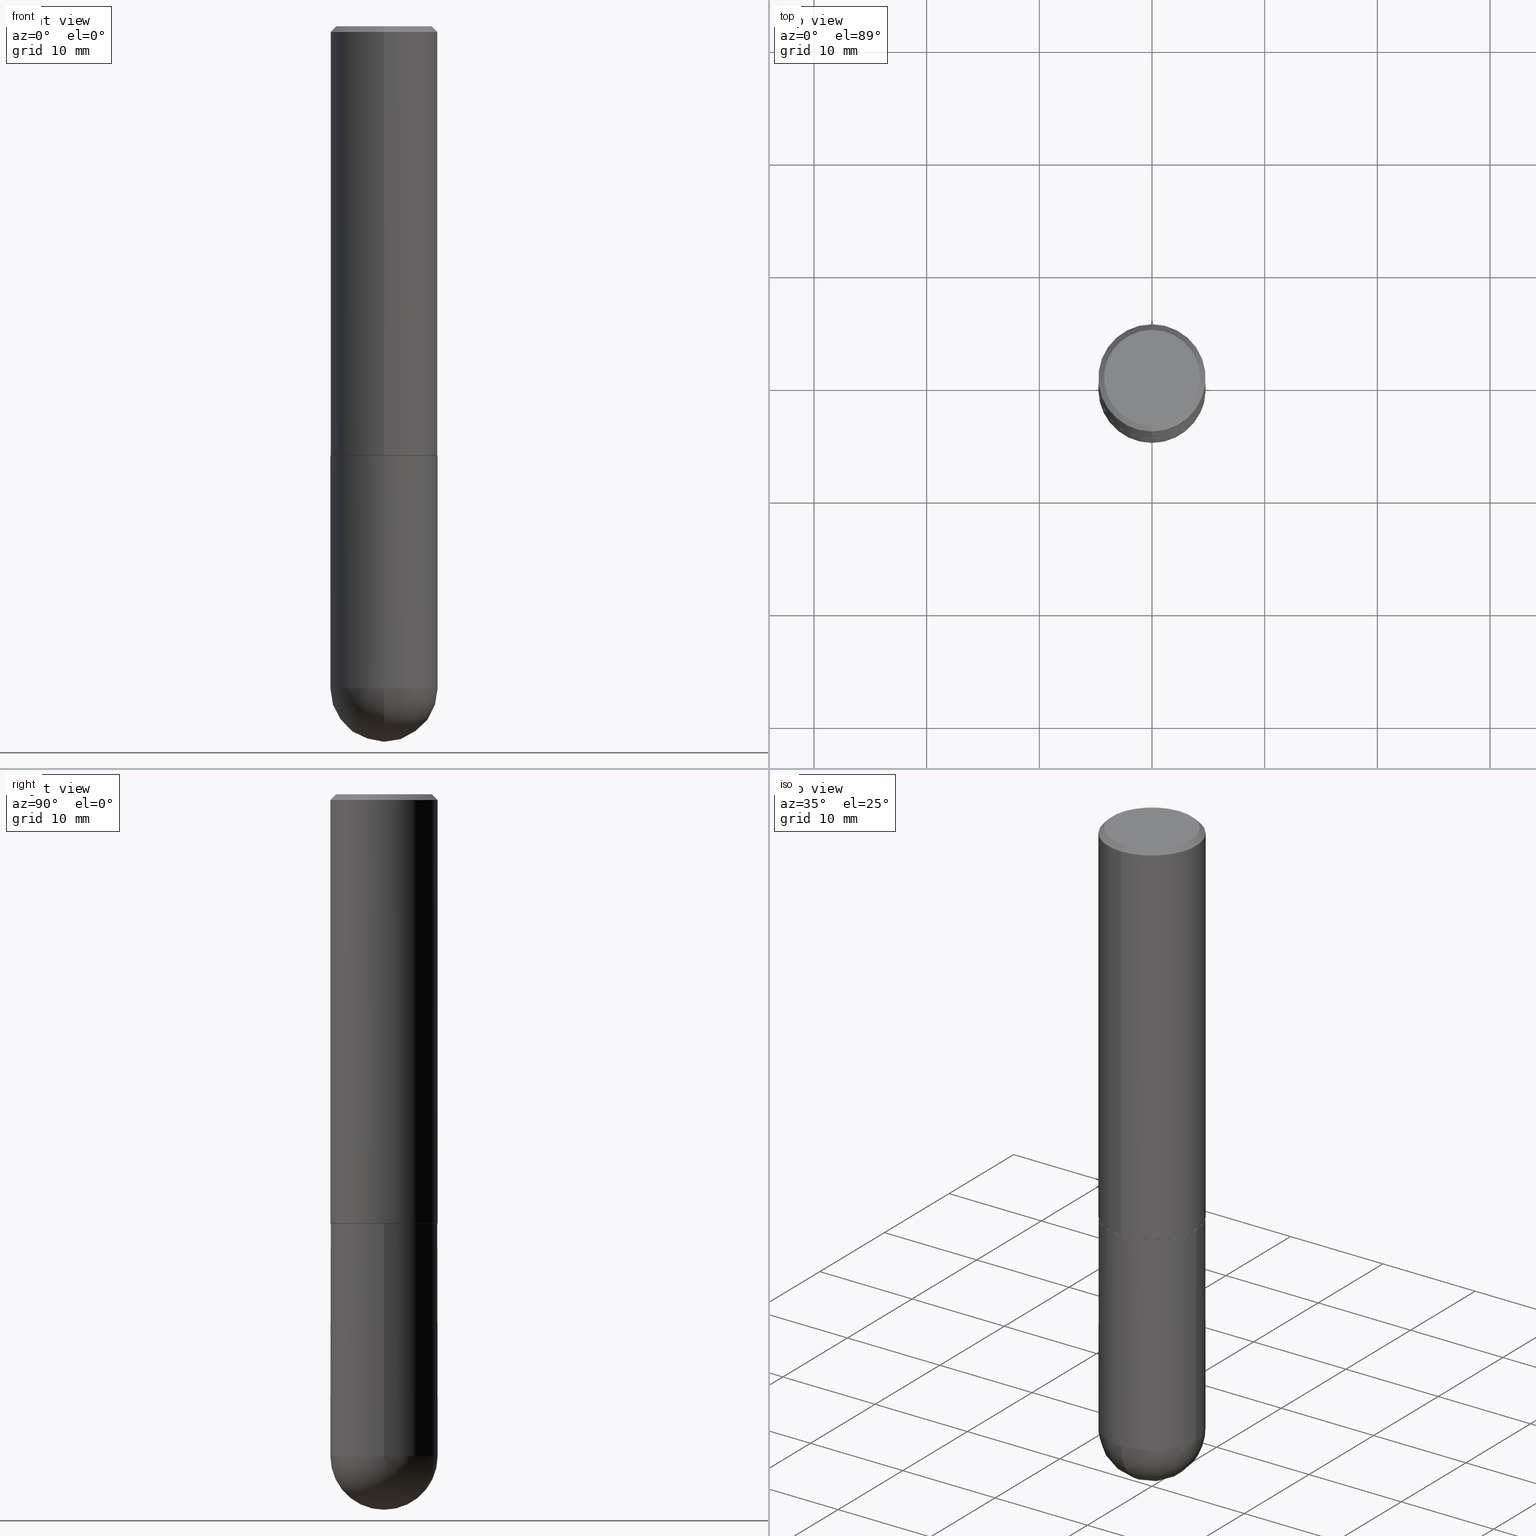
[diagram: canonical four-view strip — front | top / right | iso, engineering-drawing reading convention]
A machine part, canonical four-view strip (front | top / right | iso — engineering-drawing reading convention). The complete STEP part file that produces these views, byte-faithful:
ISO-10303-21;
HEADER;
FILE_DESCRIPTION (( 'STEP AP203' ),
    '1' );
FILE_NAME ('39548.STEP',
    '2024-02-21T19:46:56',
    ( '' ),
    ( '' ),
    'SwSTEP 2.0',
    'SolidWorks 2023',
    '' );
FILE_SCHEMA (( 'CONFIG_CONTROL_DESIGN' ));
ENDSEC;

DATA;
#1 = ADVANCED_FACE ( 'NONE', ( #367 ), #68, .F. ) ;
#2 = ORIENTED_EDGE ( 'NONE', *, *, #249, .T. ) ;
#3 = ORIENTED_EDGE ( 'NONE', *, *, #203, .T. ) ;
#4 = CALENDAR_DATE ( 2024, 21, 2 ) ;
#5 = DIRECTION ( 'NONE',  ( 6.982962677686266711E-15, 1.000000000000000000, -2.913971193241875639E-15 ) ) ;
#6 = FACE_OUTER_BOUND ( 'NONE', #35, .T. ) ;
#7 = EDGE_CURVE ( 'NONE', #330, #138, #229, .T. ) ;
#8 = PLANE ( 'NONE',  #372 ) ;
#9 = DIRECTION ( 'NONE',  ( -2.445024502847078342E-29, 3.492117606511420488E-15, 1.000000000000000000 ) ) ;
#10 = CARTESIAN_POINT ( 'NONE',  ( 4.890049005694167439E-31, -6.984235213022855028E-17, -0.02000000000000004205 ) ) ;
#11 = ORIENTED_EDGE ( 'NONE', *, *, #249, .F. ) ;
#12 = CONICAL_SURFACE ( 'NONE', #162, 0.1864999999999999714, 0.7853981633973801113 ) ;
#13 = DIRECTION ( 'NONE',  ( 1.000000000000000000, -6.982962677686270655E-15, 0.000000000000000000 ) ) ;
#14 = ORIENTED_EDGE ( 'NONE', *, *, #361, .F. ) ;
#15 = EDGE_LOOP ( 'NONE', ( #268, #61, #104, #381 ) ) ;
#16 = PERSON_AND_ORGANIZATION ( #52, #256 ) ;
#17 = APPROVAL_STATUS ( 'not_yet_approved' ) ;
#18 = CIRCLE ( 'NONE', #142, 0.1875000000000000555 ) ;
#19 =( GEOMETRIC_REPRESENTATION_CONTEXT ( 3 ) GLOBAL_UNCERTAINTY_ASSIGNED_CONTEXT ( ( #306 ) ) GLOBAL_UNIT_ASSIGNED_CONTEXT ( ( #78, #147, #77 ) ) REPRESENTATION_CONTEXT ( 'NONE', 'WORKASPACE' ) );
#20 = MANIFOLD_SOLID_BREP ( 'Body-Move/Copy2[1]', #53 ) ;
#21 = DIRECTION ( 'NONE',  ( -2.445468806185136597E-29, 3.491481338843145583E-15, 1.000000000000000000 ) ) ;
#22 = CARTESIAN_POINT ( 'NONE',  ( 0.1875000000000000278, -6.546527510330893974E-15, -1.500000000000000222 ) ) ;
#23 = LENGTH_MEASURE_WITH_UNIT ( LENGTH_MEASURE( 0.02539999999999999897 ), #313 );
#24 = DIRECTION ( 'NONE',  ( -7.105427357600999492E-15, -1.000000000000000000, 0.000000000000000000 ) ) ;
#25 = CC_DESIGN_APPROVAL ( #71, ( #369 ) ) ;
#26 = EDGE_CURVE ( 'NONE', #286, #65, #177, .T. ) ;
#27 = PERSON_AND_ORGANIZATION ( #52, #256 ) ;
#28 = APPROVAL_DATE_TIME ( #354, #217 ) ;
#29 = EDGE_LOOP ( 'NONE', ( #195, #412, #189, #357 ) ) ;
#30 = DIRECTION ( 'NONE',  ( 1.000000000000000000, -6.982962677686266711E-15, 0.000000000000000000 ) ) ;
#31 = ORIENTED_EDGE ( 'NONE', *, *, #122, .F. ) ;
#32 = DIRECTION ( 'NONE',  ( 4.937700262164540154E-15, 0.7071067811865440200, -0.7071067811865510144 ) ) ;
#33 = LINE ( 'NONE', #239, #259 ) ;
#34 = DIRECTION ( 'NONE',  ( -6.982962677686266711E-15, -1.000000000000000000, 3.483106191921935949E-15 ) ) ;
#35 = EDGE_LOOP ( 'NONE', ( #362, #398, #324, #348 ) ) ;
#36 = CC_DESIGN_DATE_AND_TIME_ASSIGNMENT ( #320, #224, ( #283 ) ) ;
#37 = CARTESIAN_POINT ( 'NONE',  ( 5.655146614303128380E-29, -8.074050596074775072E-15, -2.312500000000000000 ) ) ;
#38 = AXIS2_PLACEMENT_3D ( 'NONE', #235, #390, #394 ) ;
#39 = ORIENTED_EDGE ( 'NONE', *, *, #293, .F. ) ;
#40 = AXIS2_PLACEMENT_3D ( 'NONE', #292, #250, #201 ) ;
#41 = FACE_OUTER_BOUND ( 'NONE', #176, .T. ) ;
#42 = DIRECTION ( 'NONE',  ( -2.445468806185136877E-29, 3.491481338843145188E-15, 1.000000000000000000 ) ) ;
#43 = EDGE_CURVE ( 'NONE', #191, #116, #33, .T. ) ;
#44 = CC_DESIGN_PERSON_AND_ORGANIZATION_ASSIGNMENT ( #272, #102, ( #369 ) ) ;
#45 = CIRCLE ( 'NONE', #253, 0.1875000000000000278 ) ;
#46 = CARTESIAN_POINT ( 'NONE',  ( 1.332267629550188243E-15, 0.1875000000000000833, -6.547720512208916374E-16 ) ) ;
#47 = DIRECTION ( 'NONE',  ( 6.982962677686265922E-15, 1.000000000000000000, 0.000000000000000000 ) ) ;
#48 = CYLINDRICAL_SURFACE ( 'NONE', #347, 0.1875000000000000555 ) ;
#49 = CARTESIAN_POINT ( 'NONE',  ( -1.286343374582161379E-15, -0.1875000000000000555, -0.01999999999999938979 ) ) ;
#50 = AXIS2_PLACEMENT_3D ( 'NONE', #342, #82, #106 ) ;
#51 = DIRECTION ( 'NONE',  ( -1.000000000000000000, 7.105427357601001070E-15, -4.926315508542082329E-29 ) ) ;
#52 = PERSON ( 'UNSPECIFIED', 'UNSPECIFIED', 'UNSPECIFIED', ('UNSPECIFIED'), ('UNSPECIFIED'), ('UNSPECIFIED') ) ;
#53 = CLOSED_SHELL ( 'NONE', ( #88, #289, #210, #211, #317 ) ) ;
#54 = VECTOR ( 'NONE', #32, 39.37007874015748143 ) ;
#55 = APPROVAL_STATUS ( 'not_yet_approved' ) ;
#56 = DIRECTION ( 'NONE',  ( -2.445024502847078342E-29, 3.492117606511420488E-15, 1.000000000000000000 ) ) ;
#57 = ORIENTED_EDGE ( 'NONE', *, *, #349, .T. ) ;
#58 = CLOSED_SHELL ( 'NONE', ( #198, #395, #114, #242, #107, #80, #151, #1 ) ) ;
#59 = CARTESIAN_POINT ( 'NONE',  ( 3.667536754270618774E-29, -5.238176409767131521E-15, -1.500000000000000444 ) ) ;
#60 = CC_DESIGN_SECURITY_CLASSIFICATION ( #369, ( #69 ) ) ;
#61 = ORIENTED_EDGE ( 'NONE', *, *, #133, .F. ) ;
#62 = DIRECTION ( 'NONE',  ( -6.982962677686265922E-15, -1.000000000000000000, 2.929595703661408850E-15 ) ) ;
#63 = EDGE_LOOP ( 'NONE', ( #387, #234 ) ) ;
#64 = DIRECTION ( 'NONE',  ( -2.445024502847078342E-29, 3.492117606511420488E-15, 1.000000000000000000 ) ) ;
#65 = VERTEX_POINT ( 'NONE', #328 ) ;
#66 = FACE_OUTER_BOUND ( 'NONE', #84, .T. ) ;
#67 = CIRCLE ( 'NONE', #302, 0.1864999999999999714 ) ;
#68 = PLANE ( 'NONE',  #382 ) ;
#69 = PRODUCT_DEFINITION_FORMATION_WITH_SPECIFIED_SOURCE ( 'ANY', '', #401, .NOT_KNOWN. ) ;
#70 = DIRECTION ( 'NONE',  ( -6.982962677686265922E-15, -1.000000000000000000, 3.492117606511420488E-15 ) ) ;
#71 = APPROVAL ( #17, 'UNSPECIFIED' ) ;
#72 = DIRECTION ( 'NONE',  ( -2.445468806185136597E-29, 3.491481338843145583E-15, 1.000000000000000000 ) ) ;
#73 = ADVANCED_BREP_SHAPE_REPRESENTATION ( '39548', ( #20, #152, #185 ), #19 ) ;
#74 = VECTOR ( 'NONE', #370, 39.37007874015748143 ) ;
#75 = CARTESIAN_POINT ( 'NONE',  ( -1.309305502066139509E-15, -0.1875000000000054123, -1.498999999999999444 ) ) ;
#76 = FACE_OUTER_BOUND ( 'NONE', #29, .T. ) ;
#77 =( NAMED_UNIT ( * ) SI_UNIT ( $, .STERADIAN. ) SOLID_ANGLE_UNIT ( ) );
#78 =( CONVERSION_BASED_UNIT ( 'INCH', #23 ) LENGTH_UNIT ( ) NAMED_UNIT ( #243 ) );
#79 = AXIS2_PLACEMENT_3D ( 'NONE', #111, #375, #70 ) ;
#80 = ADVANCED_FACE ( 'NONE', ( #6 ), #161, .T. ) ;
#81 = ORIENTED_EDGE ( 'NONE', *, *, #355, .F. ) ;
#82 = DIRECTION ( 'NONE',  ( -2.445024502847078342E-29, 3.492117606511420488E-15, 1.000000000000000000 ) ) ;
#83 = EDGE_LOOP ( 'NONE', ( #99, #101 ) ) ;
#84 = EDGE_LOOP ( 'NONE', ( #254, #97, #14, #121 ) ) ;
#85 = AXIS2_PLACEMENT_3D ( 'NONE', #374, #371, #47 ) ;
#86 = AXIS2_PLACEMENT_3D ( 'NONE', #403, #340, #285 ) ;
#87 = ORIENTED_EDGE ( 'NONE', *, *, #310, .F. ) ;
#88 = ADVANCED_FACE ( 'NONE', ( #183 ), #148, .T. ) ;
#89 = COORDINATED_UNIVERSAL_TIME_OFFSET ( 5, 0, .BEHIND. ) ;
#90 = CARTESIAN_POINT ( 'NONE',  ( -1.286343374582161379E-15, -0.1875000000000000555, -0.01999999999999938979 ) ) ;
#91 = ORIENTED_EDGE ( 'NONE', *, *, #361, .T. ) ;
#92 = LINE ( 'NONE', #356, #54 ) ;
#93 = DIRECTION ( 'NONE',  ( 2.445024502847078062E-29, -3.492117606511420488E-15, -1.000000000000000000 ) ) ;
#94 = EDGE_CURVE ( 'NONE', #65, #157, #281, .T. ) ;
#95 = AXIS2_PLACEMENT_3D ( 'NONE', #279, #72, #144 ) ;
#96 = APPROVAL_PERSON_ORGANIZATION ( #350, #217, #222 ) ;
#97 = ORIENTED_EDGE ( 'NONE', *, *, #26, .T. ) ;
#98 = DIRECTION ( 'NONE',  ( -2.445024502847078342E-29, 3.492117606511420488E-15, 1.000000000000000000 ) ) ;
#99 = ORIENTED_EDGE ( 'NONE', *, *, #172, .F. ) ;
#100 = DIRECTION ( 'NONE',  ( -2.445468806185136597E-29, 3.491481338843145583E-15, 1.000000000000000000 ) ) ;
#101 = ORIENTED_EDGE ( 'NONE', *, *, #277, .F. ) ;
#102 = PERSON_AND_ORGANIZATION_ROLE ( 'classification_officer' ) ;
#103 = AXIS2_PLACEMENT_3D ( 'NONE', #112, #21, #186 ) ;
#104 = ORIENTED_EDGE ( 'NONE', *, *, #247, .T. ) ;
#105 = SHAPE_DEFINITION_REPRESENTATION ( #155, #73 ) ;
#106 = DIRECTION ( 'NONE',  ( -6.982962677686265922E-15, -1.000000000000000000, 2.913971193241877611E-15 ) ) ;
#107 = ADVANCED_FACE ( 'NONE', ( #76 ), #405, .T. ) ;
#108 = CARTESIAN_POINT ( 'NONE',  ( -1.309305502066175600E-15, -0.1875000000000000833, 6.547720512208916374E-16 ) ) ;
#109 = CIRCLE ( 'NONE', #174, 0.1874999999999999722 ) ;
#110 = PERSON_AND_ORGANIZATION ( #52, #256 ) ;
#111 = CARTESIAN_POINT ( 'NONE',  ( -1.881196954036604278E-45, 2.686828290210290471E-31, 7.693979965624344305E-17 ) ) ;
#112 = CARTESIAN_POINT ( 'NONE',  ( 5.655146614303128380E-29, -8.074050596074775072E-15, -2.312500000000000000 ) ) ;
#113 = DIRECTION ( 'NONE',  ( 6.982962677686266711E-15, 1.000000000000000000, -3.483106191921935949E-15 ) ) ;
#114 = ADVANCED_FACE ( 'NONE', ( #284 ), #288, .T. ) ;
#115 = FACE_OUTER_BOUND ( 'NONE', #171, .T. ) ;
#116 = VERTEX_POINT ( 'NONE', #22 ) ;
#117 = APPLICATION_PROTOCOL_DEFINITION ( 'international standard', 'config_control_design', 1994, #209 ) ;
#118 = AXIS2_PLACEMENT_3D ( 'NONE', #197, #311, #128 ) ;
#119 = CC_DESIGN_PERSON_AND_ORGANIZATION_ASSIGNMENT ( #264, #166, ( #69 ) ) ;
#120 = APPROVAL_PERSON_ORGANIZATION ( #27, #146, #192 ) ;
#121 = ORIENTED_EDGE ( 'NONE', *, *, #280, .F. ) ;
#122 = EDGE_CURVE ( 'NONE', #364, #294, #248, .T. ) ;
#123 = ORIENTED_EDGE ( 'NONE', *, *, #7, .F. ) ;
#124 = VERTEX_POINT ( 'NONE', #246 ) ;
#125 = COORDINATED_UNIVERSAL_TIME_OFFSET ( 5, 0, .BEHIND. ) ;
#126 = CIRCLE ( 'NONE', #50, 0.1875000000000001943 ) ;
#127 = LOCAL_TIME ( 14, 46, 56.00000000000000000, #89 ) ;
#128 = DIRECTION ( 'NONE',  ( 1.000000000000000000, -6.982962677686270655E-15, 0.000000000000000000 ) ) ;
#129 = VERTEX_POINT ( 'NONE', #373 ) ;
#130 = APPROVAL_DATE_TIME ( #290, #146 ) ;
#131 = FACE_OUTER_BOUND ( 'NONE', #232, .T. ) ;
#132 = VERTEX_POINT ( 'NONE', #341 ) ;
#133 = EDGE_CURVE ( 'NONE', #141, #132, #196, .T. ) ;
#134 = SPHERICAL_SURFACE ( 'NONE', #223, 0.1875000000000003331 ) ;
#135 = DIRECTION ( 'NONE',  ( -6.982962677686265922E-15, -1.000000000000000000, 2.929595703661408850E-15 ) ) ;
#136 = CARTESIAN_POINT ( 'NONE',  ( 5.324026836389243254E-29, -8.548232964214825368E-15, -2.312500000000000000 ) ) ;
#137 = AXIS2_PLACEMENT_3D ( 'NONE', #59, #56, #163 ) ;
#138 = VERTEX_POINT ( 'NONE', #252 ) ;
#139 = CARTESIAN_POINT ( 'NONE',  ( 5.790569421510013204E-29, -9.191404651505909607E-15, -2.500000000000000000 ) ) ;
#140 = ORIENTED_EDGE ( 'NONE', *, *, #308, .T. ) ;
#141 = VERTEX_POINT ( 'NONE', #378 ) ;
#142 = AXIS2_PLACEMENT_3D ( 'NONE', #37, #100, #13 ) ;
#143 = CC_DESIGN_APPROVAL ( #146, ( #69 ) ) ;
#144 = DIRECTION ( 'NONE',  ( 1.000000000000000000, -6.982962677686265922E-15, 4.876176775795935793E-29 ) ) ;
#145 = APPROVAL_DATE_TIME ( #339, #71 ) ;
#146 = APPROVAL ( #55, 'UNSPECIFIED' ) ;
#147 =( NAMED_UNIT ( * ) PLANE_ANGLE_UNIT ( ) SI_UNIT ( $, .RADIAN. ) );
#148 = CYLINDRICAL_SURFACE ( 'NONE', #95, 0.1875000000000000555 ) ;
#149 = CIRCLE ( 'NONE', #383, 0.1875000000000000278 ) ;
#150 = CYLINDRICAL_SURFACE ( 'NONE', #86, 0.1875000000000000833 ) ;
#151 = ADVANCED_FACE ( 'NONE', ( #220 ), #219, .F. ) ;
#152 = MANIFOLD_SOLID_BREP ( 'Body-Move/Copy2[2]', #58 ) ;
#153 = LINE ( 'NONE', #49, #404 ) ;
#154 = CC_DESIGN_PERSON_AND_ORGANIZATION_ASSIGNMENT ( #385, #346, ( #283 ) ) ;
#155 = PRODUCT_DEFINITION_SHAPE ( 'NONE', 'NONE',  #283 ) ;
#156 = COORDINATED_UNIVERSAL_TIME_OFFSET ( 5, 0, .BEHIND. ) ;
#157 = VERTEX_POINT ( 'NONE', #190 ) ;
#158 = APPROVAL_STATUS ( 'not_yet_approved' ) ;
#159 = EDGE_LOOP ( 'NONE', ( #91, #266, #39, #31 ) ) ;
#160 = CALENDAR_DATE ( 2024, 21, 2 ) ;
#161 = CONICAL_SURFACE ( 'NONE', #368, 0.1864999999999999714, 0.7853981633973801113 ) ;
#162 = AXIS2_PLACEMENT_3D ( 'NONE', #194, #265, #62 ) ;
#163 = DIRECTION ( 'NONE',  ( -6.982962677686265922E-15, -1.000000000000000000, 2.929595703661408850E-15 ) ) ;
#164 = ORIENTED_EDGE ( 'NONE', *, *, #355, .T. ) ;
#165 = EDGE_CURVE ( 'NONE', #65, #364, #411, .T. ) ;
#166 = PERSON_AND_ORGANIZATION_ROLE ( 'creator' ) ;
#167 = CARTESIAN_POINT ( 'NONE',  ( 5.324026836389243254E-29, -8.548232964214825368E-15, -2.312500000000000000 ) ) ;
#168 = CARTESIAN_POINT ( 'NONE',  ( 3.667536754270618774E-29, -5.238176409767131521E-15, -1.500000000000000444 ) ) ;
#169 = APPROVAL_ROLE ( '' ) ;
#170 = CARTESIAN_POINT ( 'NONE',  ( -1.881196954036604278E-45, 2.686828290210290471E-31, 7.693979965624344305E-17 ) ) ;
#171 = EDGE_LOOP ( 'NONE', ( #123, #274, #236, #384, #300 ) ) ;
#172 = EDGE_CURVE ( 'NONE', #124, #286, #184, .T. ) ;
#173 = DIRECTION ( 'NONE',  ( 2.438088387897960049E-29, -3.491481338843145188E-15, -1.000000000000000000 ) ) ;
#174 = AXIS2_PLACEMENT_3D ( 'NONE', #10, #363, #331 ) ;
#175 = LOCAL_TIME ( 14, 46, 56.00000000000000000, #255 ) ;
#176 = EDGE_LOOP ( 'NONE', ( #81, #321, #11, #291 ) ) ;
#177 = LINE ( 'NONE', #305, #323 ) ;
#178 = DIRECTION ( 'NONE',  ( -6.982962677686266711E-15, -1.000000000000000000, 3.492117606511420488E-15 ) ) ;
#179 = PERSON_AND_ORGANIZATION ( #52, #256 ) ;
#180 = CIRCLE ( 'NONE', #282, 0.1875000000000000555 ) ;
#181 = DIRECTION ( 'NONE',  ( -6.982962677686265922E-15, -1.000000000000000000, 3.492117606511420488E-15 ) ) ;
#182 = DIRECTION ( 'NONE',  ( -2.445024502847078622E-29, 3.492117606511420488E-15, 1.000000000000000000 ) ) ;
#183 = FACE_OUTER_BOUND ( 'NONE', #199, .T. ) ;
#184 = CIRCLE ( 'NONE', #137, 0.1864999999999999714 ) ;
#185 = AXIS2_PLACEMENT_3D ( 'NONE', #287, #410, #215 ) ;
#186 = DIRECTION ( 'NONE',  ( 1.000000000000000000, -6.982962677686270655E-15, 0.000000000000000000 ) ) ;
#187 = DIRECTION ( 'NONE',  ( 1.000000000000000000, -6.982962677686265922E-15, 4.876176775795935793E-29 ) ) ;
#188 = CARTESIAN_POINT ( 'NONE',  ( 3.667536754270618774E-29, -5.238176409767131521E-15, -1.500000000000000444 ) ) ;
#189 = ORIENTED_EDGE ( 'NONE', *, *, #122, .T. ) ;
#190 = CARTESIAN_POINT ( 'NONE',  ( 1.309305502066175205E-15, 0.1874999999999999167, -0.02000000000000069431 ) ) ;
#191 = VERTEX_POINT ( 'NONE', #322 ) ;
#192 = APPROVAL_ROLE ( '' ) ;
#193 = EDGE_CURVE ( 'NONE', #132, #141, #309, .T. ) ;
#194 = CARTESIAN_POINT ( 'NONE',  ( 3.667536754270618774E-29, -5.238176409767131521E-15, -1.500000000000000444 ) ) ;
#195 = ORIENTED_EDGE ( 'NONE', *, *, #94, .F. ) ;
#196 = CIRCLE ( 'NONE', #79, 0.1674999999999999267 ) ;
#197 = CARTESIAN_POINT ( 'NONE',  ( 5.655146614303128380E-29, -8.074050596074775072E-15, -2.312500000000000000 ) ) ;
#198 = ADVANCED_FACE ( 'NONE', ( #66 ), #12, .T. ) ;
#199 = EDGE_LOOP ( 'NONE', ( #140, #396, #332, #260, #2 ) ) ;
#200 = DATE_TIME_ROLE ( 'classification_date' ) ;
#201 = DIRECTION ( 'NONE',  ( -6.982962677686265922E-15, -1.000000000000000000, 2.913971193241877611E-15 ) ) ;
#202 = VERTEX_POINT ( 'NONE', #334 ) ;
#203 = EDGE_CURVE ( 'NONE', #138, #116, #45, .T. ) ;
#204 = SPHERICAL_SURFACE ( 'NONE', #337, 0.1875000000000003331 ) ;
#205 = EDGE_LOOP ( 'NONE', ( #351, #276, #391, #379 ) ) ;
#206 = CIRCLE ( 'NONE', #245, 0.1874999999999999722 ) ;
#207 = CARTESIAN_POINT ( 'NONE',  ( 1.328714915871423829E-15, 0.1864999999999947533, -1.500000000000000888 ) ) ;
#208 = CARTESIAN_POINT ( 'NONE',  ( 1.169646248512449003E-15, 0.1674999999999999267, -5.464597992625409218E-16 ) ) ;
#209 = APPLICATION_CONTEXT ( 'configuration controlled 3d designs of mechanical parts and assemblies' ) ;
#210 = ADVANCED_FACE ( 'NONE', ( #41 ), #134, .T. ) ;
#211 = ADVANCED_FACE ( 'NONE', ( #131 ), #8, .F. ) ;
#212 = CALENDAR_DATE ( 2024, 21, 2 ) ;
#213 = DIRECTION ( 'NONE',  ( -2.445468806185136597E-29, 3.491481338843145583E-15, 1.000000000000000000 ) ) ;
#214 = DIRECTION ( 'NONE',  ( -2.445024502847078342E-29, 3.492117606511420488E-15, 1.000000000000000000 ) ) ;
#215 = DIRECTION ( 'NONE',  ( 1.000000000000000000, 0.000000000000000000, 0.000000000000000000 ) ) ;
#216 = CARTESIAN_POINT ( 'NONE',  ( 5.324026836389243254E-29, -8.548232964214825368E-15, -2.312500000000000000 ) ) ;
#217 = APPROVAL ( #158, 'UNSPECIFIED' ) ;
#218 = DIRECTION ( 'NONE',  ( -2.445468806185136597E-29, 3.491481338843145583E-15, 1.000000000000000000 ) ) ;
#219 = PLANE ( 'NONE',  #358 ) ;
#220 = FACE_OUTER_BOUND ( 'NONE', #83, .T. ) ;
#221 = CC_DESIGN_PERSON_AND_ORGANIZATION_ASSIGNMENT ( #16, #275, ( #69 ) ) ;
#222 = APPROVAL_ROLE ( '' ) ;
#223 = AXIS2_PLACEMENT_3D ( 'NONE', #167, #388, #5 ) ;
#224 = DATE_TIME_ROLE ( 'creation_date' ) ;
#225 = DIRECTION ( 'NONE',  ( -2.445468806185136597E-29, 3.491481338843145583E-15, 1.000000000000000000 ) ) ;
#226 = APPLICATION_CONTEXT ( 'configuration controlled 3d designs of mechanical parts and assemblies' ) ;
#227 = EDGE_CURVE ( 'NONE', #157, #294, #206, .T. ) ;
#228 = CARTESIAN_POINT ( 'NONE',  ( 1.309305502066211690E-15, 0.1874999999999947820, -1.500000000000000666 ) ) ;
#229 = LINE ( 'NONE', #298, #301 ) ;
#230 = AXIS2_PLACEMENT_3D ( 'NONE', #170, #64, #181 ) ;
#231 = DIRECTION ( 'NONE',  ( -2.445468806185136597E-29, 3.491481338843145583E-15, 1.000000000000000000 ) ) ;
#232 = EDGE_LOOP ( 'NONE', ( #57, #3 ) ) ;
#233 = DIRECTION ( 'NONE',  ( 6.982962677686266711E-15, 1.000000000000000000, -2.913971193241875639E-15 ) ) ;
#234 = ORIENTED_EDGE ( 'NONE', *, *, #193, .T. ) ;
#235 = CARTESIAN_POINT ( 'NONE',  ( 4.890049005694167439E-31, -6.984235213022855028E-17, -0.02000000000000004205 ) ) ;
#236 = ORIENTED_EDGE ( 'NONE', *, *, #365, .T. ) ;
#237 = COORDINATED_UNIVERSAL_TIME_OFFSET ( 5, 0, .BEHIND. ) ;
#238 = CIRCLE ( 'NONE', #85, 0.1875000000000003331 ) ;
#239 = CARTESIAN_POINT ( 'NONE',  ( 0.1875000000000000555, -1.309305502066175205E-15, 9.142831454617382414E-30 ) ) ;
#240 = CALENDAR_DATE ( 2024, 21, 2 ) ;
#241 = SECURITY_CLASSIFICATION_LEVEL ( 'unclassified' ) ;
#242 = ADVANCED_FACE ( 'NONE', ( #303 ), #392, .T. ) ;
#243 = DIMENSIONAL_EXPONENTS ( 1.000000000000000000, 0.000000000000000000, 0.000000000000000000, 0.000000000000000000, 0.000000000000000000, 0.000000000000000000, 0.000000000000000000 ) ;
#244 = APPLICATION_PROTOCOL_DEFINITION ( 'international standard', 'config_control_design', 1994, #226 ) ;
#245 = AXIS2_PLACEMENT_3D ( 'NONE', #327, #263, #34 ) ;
#246 = CARTESIAN_POINT ( 'NONE',  ( -1.302322539388451720E-15, -0.1865000000000051894, -1.499999999999999778 ) ) ;
#247 = EDGE_CURVE ( 'NONE', #141, #157, #92, .T. ) ;
#248 = LINE ( 'NONE', #108, #74 ) ;
#249 = EDGE_CURVE ( 'NONE', #191, #129, #333, .T. ) ;
#250 = DIRECTION ( 'NONE',  ( -2.445024502847078342E-29, 3.492117606511420488E-15, 1.000000000000000000 ) ) ;
#251 = DIRECTION ( 'NONE',  ( -4.851104656540956386E-15, -0.7071067811865489050, -0.7071067811865461294 ) ) ;
#252 = CARTESIAN_POINT ( 'NONE',  ( -0.1875000000000000278, -5.323368672619557593E-15, -1.500000000000000222 ) ) ;
#253 = AXIS2_PLACEMENT_3D ( 'NONE', #329, #231, #30 ) ;
#254 = ORIENTED_EDGE ( 'NONE', *, *, #172, .T. ) ;
#255 = COORDINATED_UNIVERSAL_TIME_OFFSET ( 5, 0, .BEHIND. ) ;
#256 = ORGANIZATION ( 'UNSPECIFIED', 'UNSPECIFIED', '' ) ;
#257 = MECHANICAL_CONTEXT ( 'NONE', #209, 'mechanical' ) ;
#258 = DESIGN_CONTEXT ( 'detailed design', #226, 'design' ) ;
#259 = VECTOR ( 'NONE', #296, 39.37007874015748143 ) ;
#260 = ORIENTED_EDGE ( 'NONE', *, *, #43, .F. ) ;
#261 = CIRCLE ( 'NONE', #316, 0.1875000000000003331 ) ;
#262 = LOCAL_TIME ( 14, 46, 56.00000000000000000, #125 ) ;
#263 = DIRECTION ( 'NONE',  ( -2.445024502847078342E-29, 3.492117606511420488E-15, 1.000000000000000000 ) ) ;
#264 = PERSON_AND_ORGANIZATION ( #52, #256 ) ;
#265 = DIRECTION ( 'NONE',  ( -2.445024502847078342E-29, 3.492117606511420488E-15, 1.000000000000000000 ) ) ;
#266 = ORIENTED_EDGE ( 'NONE', *, *, #94, .T. ) ;
#267 = FACE_OUTER_BOUND ( 'NONE', #345, .T. ) ;
#268 = ORIENTED_EDGE ( 'NONE', *, *, #338, .F. ) ;
#269 = VECTOR ( 'NONE', #182, 39.37007874015748143 ) ;
#270 = DIRECTION ( 'NONE',  ( -1.000000000000000000, 6.982962677686266711E-15, -4.883557194083113462E-29 ) ) ;
#271 = VERTEX_POINT ( 'NONE', #139 ) ;
#272 = PERSON_AND_ORGANIZATION ( #52, #256 ) ;
#273 = CARTESIAN_POINT ( 'NONE',  ( -1.302322539388451720E-15, -0.1865000000000051894, -1.499999999999999778 ) ) ;
#274 = ORIENTED_EDGE ( 'NONE', *, *, #310, .T. ) ;
#275 = PERSON_AND_ORGANIZATION_ROLE ( 'design_supplier' ) ;
#276 = ORIENTED_EDGE ( 'NONE', *, *, #338, .T. ) ;
#277 = EDGE_CURVE ( 'NONE', #286, #124, #67, .T. ) ;
#278 = AXIS2_PLACEMENT_3D ( 'NONE', #307, #402, #113 ) ;
#279 = CARTESIAN_POINT ( 'NONE',  ( 0.000000000000000000, 0.000000000000000000, 0.000000000000000000 ) ) ;
#280 = EDGE_CURVE ( 'NONE', #124, #364, #297, .T. ) ;
#281 = LINE ( 'NONE', #46, #269 ) ;
#282 = AXIS2_PLACEMENT_3D ( 'NONE', #366, #225, #353 ) ;
#283 = PRODUCT_DEFINITION ( 'UNKNOWN', '', #69, #258 ) ;
#284 = FACE_OUTER_BOUND ( 'NONE', #205, .T. ) ;
#285 = DIRECTION ( 'NONE',  ( -6.982962677686266711E-15, -1.000000000000000000, 3.492117606511420488E-15 ) ) ;
#286 = VERTEX_POINT ( 'NONE', #207 ) ;
#287 = CARTESIAN_POINT ( 'NONE',  ( 0.000000000000000000, 0.000000000000000000, 0.000000000000000000 ) ) ;
#288 = CONICAL_SURFACE ( 'NONE', #278, 0.1874999999999999722, 0.7853981633974468357 ) ;
#289 = ADVANCED_FACE ( 'NONE', ( #267 ), #204, .T. ) ;
#290 = DATE_AND_TIME ( #4, #359 ) ;
#291 = ORIENTED_EDGE ( 'NONE', *, *, #365, .F. ) ;
#292 = CARTESIAN_POINT ( 'NONE',  ( 3.665091729767770876E-29, -5.234684292160619130E-15, -1.499000000000000110 ) ) ;
#293 = EDGE_CURVE ( 'NONE', #294, #157, #109, .T. ) ;
#294 = VERTEX_POINT ( 'NONE', #90 ) ;
#295 = CIRCLE ( 'NONE', #103, 0.1875000000000000555 ) ;
#296 = DIRECTION ( 'NONE',  ( -2.445468806185136877E-29, 3.491481338843145188E-15, 1.000000000000000000 ) ) ;
#297 = LINE ( 'NONE', #273, #400 ) ;
#298 = CARTESIAN_POINT ( 'NONE',  ( -0.1875000000000000555, 1.332267629550188243E-15, -9.223003294227950793E-30 ) ) ;
#299 = DIRECTION ( 'NONE',  ( -6.982962677686265922E-15, -1.000000000000000000, 2.929595703661408850E-15 ) ) ;
#300 = ORIENTED_EDGE ( 'NONE', *, *, #203, .F. ) ;
#301 = VECTOR ( 'NONE', #42, 39.37007874015748143 ) ;
#302 = AXIS2_PLACEMENT_3D ( 'NONE', #386, #98, #299 ) ;
#303 = FACE_OUTER_BOUND ( 'NONE', #15, .T. ) ;
#304 = ORIENTED_EDGE ( 'NONE', *, *, #344, .F. ) ;
#305 = CARTESIAN_POINT ( 'NONE',  ( 1.325162202192623128E-15, 0.1864999999999947533, -1.500000000000000888 ) ) ;
#306 = UNCERTAINTY_MEASURE_WITH_UNIT (LENGTH_MEASURE( 1.000000000000000082E-05 ), #78, 'distance_accuracy_value', 'NONE');
#307 = CARTESIAN_POINT ( 'NONE',  ( 4.890049005694167439E-31, -6.984235213022855028E-17, -0.02000000000000004205 ) ) ;
#308 = EDGE_CURVE ( 'NONE', #129, #330, #18, .T. ) ;
#309 = CIRCLE ( 'NONE', #230, 0.1674999999999999267 ) ;
#310 = EDGE_CURVE ( 'NONE', #330, #202, #180, .T. ) ;
#311 = DIRECTION ( 'NONE',  ( -2.445468806185136597E-29, 3.491481338843145583E-15, 1.000000000000000000 ) ) ;
#312 = CARTESIAN_POINT ( 'NONE',  ( 0.000000000000000000, 0.000000000000000000, 0.000000000000000000 ) ) ;
#313 =( LENGTH_UNIT ( ) NAMED_UNIT ( * ) SI_UNIT ( $, .METRE. ) );
#314 = CC_DESIGN_DATE_AND_TIME_ASSIGNMENT ( #336, #200, ( #369 ) ) ;
#315 = PERSON_AND_ORGANIZATION_ROLE ( 'design_owner' ) ;
#316 = AXIS2_PLACEMENT_3D ( 'NONE', #216, #51, #24 ) ;
#317 = ADVANCED_FACE ( 'NONE', ( #115 ), #48, .T. ) ;
#318 = DIRECTION ( 'NONE',  ( -6.982962677686265922E-15, -1.000000000000000000, 3.492117606511420488E-15 ) ) ;
#319 = LOCAL_TIME ( 14, 46, 56.00000000000000000, #237 ) ;
#320 = DATE_AND_TIME ( #160, #127 ) ;
#321 = ORIENTED_EDGE ( 'NONE', *, *, #344, .T. ) ;
#322 = CARTESIAN_POINT ( 'NONE',  ( 0.1875000000000000555, -7.964941804235924394E-15, -2.312500000000000000 ) ) ;
#323 = VECTOR ( 'NONE', #399, 39.37007874015748143 ) ;
#324 = ORIENTED_EDGE ( 'NONE', *, *, #280, .T. ) ;
#325 = AXIS2_PLACEMENT_3D ( 'NONE', #312, #214, #178 ) ;
#326 = APPROVAL_PERSON_ORGANIZATION ( #179, #71, #169 ) ;
#327 = CARTESIAN_POINT ( 'NONE',  ( 4.890049005694167439E-31, -6.984235213022855028E-17, -0.02000000000000004205 ) ) ;
#328 = CARTESIAN_POINT ( 'NONE',  ( 1.332267629550206781E-15, 0.1874999999999949485, -1.499000000000000554 ) ) ;
#329 = CARTESIAN_POINT ( 'NONE',  ( 3.668203209277704895E-29, -5.237222008264718177E-15, -1.500000000000000222 ) ) ;
#330 = VERTEX_POINT ( 'NONE', #343 ) ;
#331 = DIRECTION ( 'NONE',  ( -6.982962677686266711E-15, -1.000000000000000000, 3.483106191921935949E-15 ) ) ;
#332 = ORIENTED_EDGE ( 'NONE', *, *, #349, .F. ) ;
#333 = CIRCLE ( 'NONE', #118, 0.1875000000000000555 ) ;
#334 = CARTESIAN_POINT ( 'NONE',  ( -1.332267629550134009E-15, -0.1875000000000084932, -2.312499999999999556 ) ) ;
#335 = DIRECTION ( 'NONE',  ( 6.982962677686265922E-15, 1.000000000000000000, -3.492117606511420488E-15 ) ) ;
#336 = DATE_AND_TIME ( #240, #319 ) ;
#337 = AXIS2_PLACEMENT_3D ( 'NONE', #136, #270, #233 ) ;
#338 = EDGE_CURVE ( 'NONE', #132, #294, #153, .T. ) ;
#339 = DATE_AND_TIME ( #212, #175 ) ;
#340 = DIRECTION ( 'NONE',  ( -2.445024502847078342E-29, 3.492117606511420488E-15, 1.000000000000000000 ) ) ;
#341 = CARTESIAN_POINT ( 'NONE',  ( -1.217738394604446245E-15, -0.1674999999999999267, 6.618694987469060248E-16 ) ) ;
#342 = CARTESIAN_POINT ( 'NONE',  ( 3.665091729767770876E-29, -5.234684292160619130E-15, -1.499000000000000110 ) ) ;
#343 = CARTESIAN_POINT ( 'NONE',  ( -0.1875000000000000555, -5.323368672619559170E-15, -2.312500000000000000 ) ) ;
#344 = EDGE_CURVE ( 'NONE', #271, #129, #238, .T. ) ;
#345 = EDGE_LOOP ( 'NONE', ( #304, #164, #87, #409 ) ) ;
#346 = PERSON_AND_ORGANIZATION_ROLE ( 'creator' ) ;
#347 = AXIS2_PLACEMENT_3D ( 'NONE', #408, #218, #187 ) ;
#348 = ORIENTED_EDGE ( 'NONE', *, *, #165, .F. ) ;
#349 = EDGE_CURVE ( 'NONE', #116, #138, #149, .T. ) ;
#350 = PERSON_AND_ORGANIZATION ( #52, #256 ) ;
#351 = ORIENTED_EDGE ( 'NONE', *, *, #193, .F. ) ;
#352 = CALENDAR_DATE ( 2024, 21, 2 ) ;
#353 = DIRECTION ( 'NONE',  ( 1.000000000000000000, -6.982962677686270655E-15, 0.000000000000000000 ) ) ;
#354 = DATE_AND_TIME ( #352, #262 ) ;
#355 = EDGE_CURVE ( 'NONE', #271, #202, #261, .T. ) ;
#356 = CARTESIAN_POINT ( 'NONE',  ( 1.309305502066175205E-15, 0.1874999999999999167, -0.02000000000000069431 ) ) ;
#357 = ORIENTED_EDGE ( 'NONE', *, *, #227, .F. ) ;
#358 = AXIS2_PLACEMENT_3D ( 'NONE', #188, #380, #318 ) ;
#359 = LOCAL_TIME ( 14, 46, 56.00000000000000000, #156 ) ;
#360 = DIRECTION ( 'NONE',  ( -1.000000000000000000, 6.982962677686265922E-15, -4.876176775795935793E-29 ) ) ;
#361 = EDGE_CURVE ( 'NONE', #364, #65, #126, .T. ) ;
#362 = ORIENTED_EDGE ( 'NONE', *, *, #26, .F. ) ;
#363 = DIRECTION ( 'NONE',  ( -2.445024502847078342E-29, 3.492117606511420488E-15, 1.000000000000000000 ) ) ;
#364 = VERTEX_POINT ( 'NONE', #75 ) ;
#365 = EDGE_CURVE ( 'NONE', #202, #191, #295, .T. ) ;
#366 = CARTESIAN_POINT ( 'NONE',  ( 5.655146614303128380E-29, -8.074050596074775072E-15, -2.312500000000000000 ) ) ;
#367 = FACE_OUTER_BOUND ( 'NONE', #63, .T. ) ;
#368 = AXIS2_PLACEMENT_3D ( 'NONE', #168, #9, #135 ) ;
#369 = SECURITY_CLASSIFICATION ( '', '', #241 ) ;
#370 = DIRECTION ( 'NONE',  ( -2.445024502847078622E-29, 3.492117606511420488E-15, 1.000000000000000000 ) ) ;
#371 = DIRECTION ( 'NONE',  ( 1.000000000000000000, -6.982962677686265922E-15, 4.883557194083112340E-29 ) ) ;
#372 = AXIS2_PLACEMENT_3D ( 'NONE', #228, #173, #360 ) ;
#373 = CARTESIAN_POINT ( 'NONE',  ( 1.309305502066231017E-15, 0.1874999999999918954, -2.312500000000000444 ) ) ;
#374 = CARTESIAN_POINT ( 'NONE',  ( 5.324026836389243254E-29, -8.548232964214825368E-15, -2.312500000000000000 ) ) ;
#375 = DIRECTION ( 'NONE',  ( -2.445024502847078342E-29, 3.492117606511420488E-15, 1.000000000000000000 ) ) ;
#376 = DIRECTION ( 'NONE',  ( 1.000000000000000000, -6.982962677686266711E-15, 0.000000000000000000 ) ) ;
#377 = FACE_OUTER_BOUND ( 'NONE', #159, .T. ) ;
#378 = CARTESIAN_POINT ( 'NONE',  ( 1.239475875289312104E-15, 0.1674999999999999267, -5.079898994344191880E-16 ) ) ;
#379 = ORIENTED_EDGE ( 'NONE', *, *, #247, .F. ) ;
#380 = DIRECTION ( 'NONE',  ( -2.445024502847078062E-29, 3.492117606511420488E-15, 1.000000000000000000 ) ) ;
#381 = ORIENTED_EDGE ( 'NONE', *, *, #227, .T. ) ;
#382 = AXIS2_PLACEMENT_3D ( 'NONE', #208, #93, #335 ) ;
#383 = AXIS2_PLACEMENT_3D ( 'NONE', #406, #213, #376 ) ;
#384 = ORIENTED_EDGE ( 'NONE', *, *, #43, .T. ) ;
#385 = PERSON_AND_ORGANIZATION ( #52, #256 ) ;
#386 = CARTESIAN_POINT ( 'NONE',  ( 3.667536754270618774E-29, -5.238176409767131521E-15, -1.500000000000000444 ) ) ;
#387 = ORIENTED_EDGE ( 'NONE', *, *, #133, .T. ) ;
#388 = DIRECTION ( 'NONE',  ( -1.000000000000000000, 6.982962677686266711E-15, -4.883557194083113462E-29 ) ) ;
#389 = PRODUCT_RELATED_PRODUCT_CATEGORY ( 'detail', '', ( #401 ) ) ;
#390 = DIRECTION ( 'NONE',  ( 2.445024502847078342E-29, -3.492117606511420488E-15, -1.000000000000000000 ) ) ;
#391 = ORIENTED_EDGE ( 'NONE', *, *, #293, .T. ) ;
#392 = CONICAL_SURFACE ( 'NONE', #38, 0.1874999999999999722, 0.7853981633974468357 ) ;
#393 = CC_DESIGN_APPROVAL ( #217, ( #283 ) ) ;
#394 = DIRECTION ( 'NONE',  ( 6.982962677686266711E-15, 1.000000000000000000, -3.483106191921935949E-15 ) ) ;
#395 = ADVANCED_FACE ( 'NONE', ( #377 ), #150, .T. ) ;
#396 = ORIENTED_EDGE ( 'NONE', *, *, #7, .T. ) ;
#397 = DIRECTION ( 'NONE',  ( -4.937700262164211199E-15, -0.7071067811864968355, 0.7071067811865981989 ) ) ;
#398 = ORIENTED_EDGE ( 'NONE', *, *, #277, .T. ) ;
#399 = DIRECTION ( 'NONE',  ( 5.024295867787719235E-15, 0.7071067811865017205, 0.7071067811865933139 ) ) ;
#400 = VECTOR ( 'NONE', #397, 39.37007874015748143 ) ;
#401 = PRODUCT ( '39548', '39548', '', ( #257 ) ) ;
#402 = DIRECTION ( 'NONE',  ( 2.445024502847078342E-29, -3.492117606511420488E-15, -1.000000000000000000 ) ) ;
#403 = CARTESIAN_POINT ( 'NONE',  ( 0.000000000000000000, 0.000000000000000000, 0.000000000000000000 ) ) ;
#404 = VECTOR ( 'NONE', #251, 39.37007874015748143 ) ;
#405 = CYLINDRICAL_SURFACE ( 'NONE', #325, 0.1875000000000000833 ) ;
#406 = CARTESIAN_POINT ( 'NONE',  ( 3.668203209277704895E-29, -5.237222008264718177E-15, -1.500000000000000222 ) ) ;
#407 = CC_DESIGN_PERSON_AND_ORGANIZATION_ASSIGNMENT ( #110, #315, ( #401 ) ) ;
#408 = CARTESIAN_POINT ( 'NONE',  ( 0.000000000000000000, 0.000000000000000000, 0.000000000000000000 ) ) ;
#409 = ORIENTED_EDGE ( 'NONE', *, *, #308, .F. ) ;
#410 = DIRECTION ( 'NONE',  ( 0.000000000000000000, 0.000000000000000000, 1.000000000000000000 ) ) ;
#411 = CIRCLE ( 'NONE', #40, 0.1875000000000001943 ) ;
#412 = ORIENTED_EDGE ( 'NONE', *, *, #165, .T. ) ;
ENDSEC;
END-ISO-10303-21;
